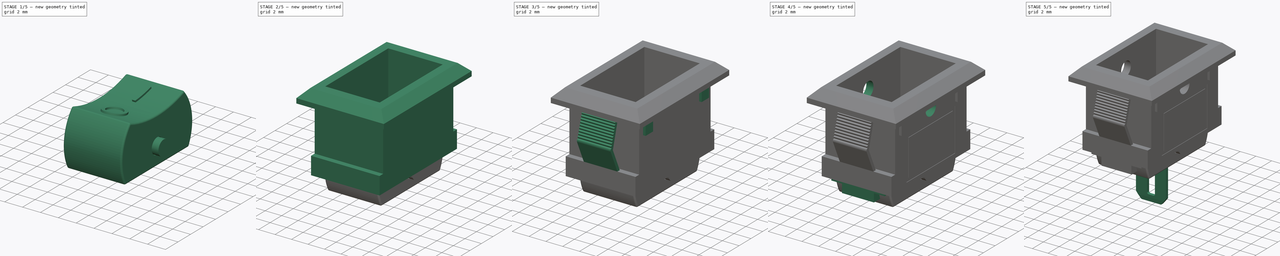
[diagram: build sequence overview — one tinted view per stage of 5, left to right]
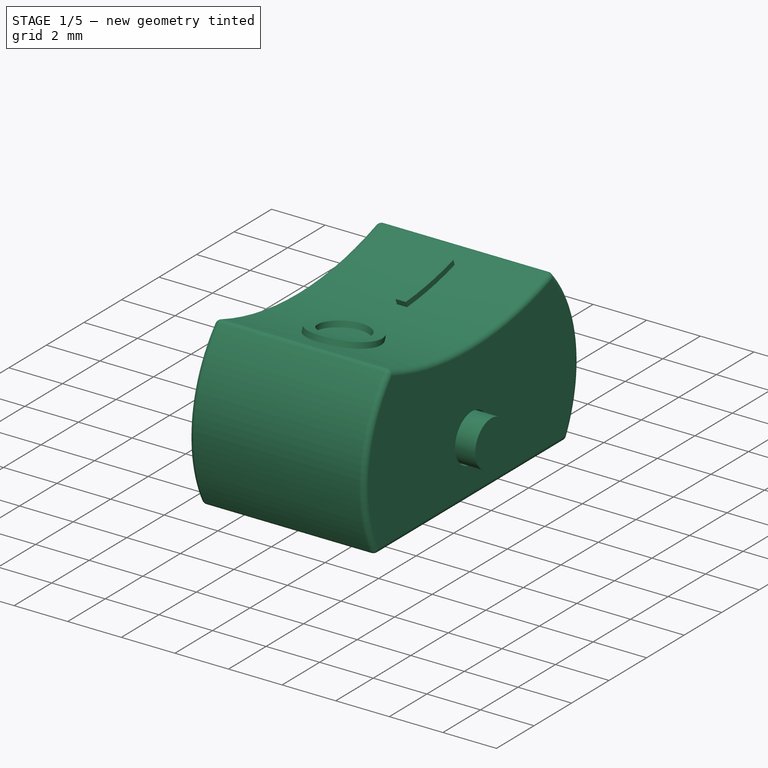
[diagram: stage 1 of 5 — iso view after this stage's code; geometry added in this stage tinted green]
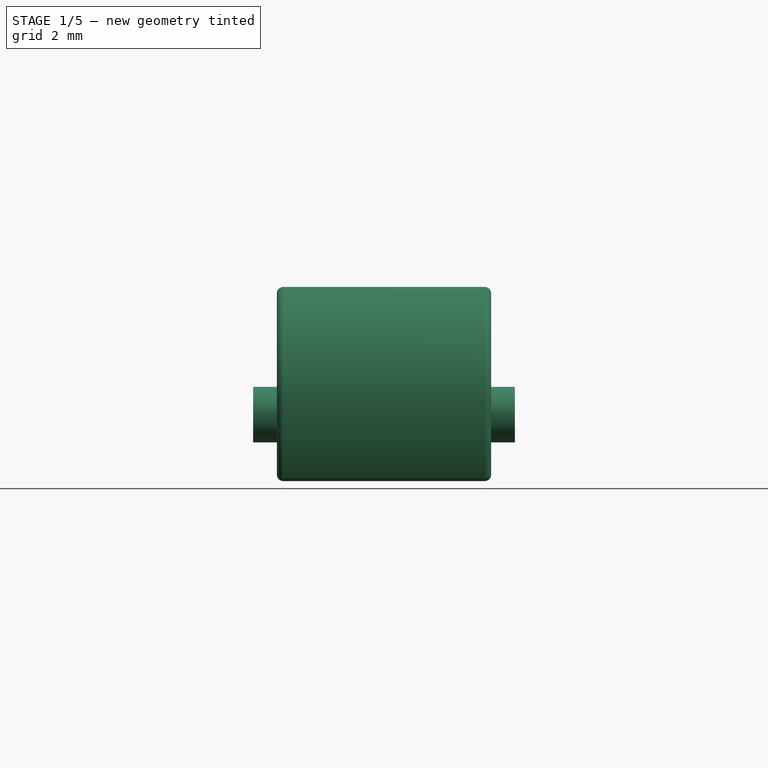
[diagram: stage 1 of 5 — front view after this stage's code; geometry added in this stage tinted green]
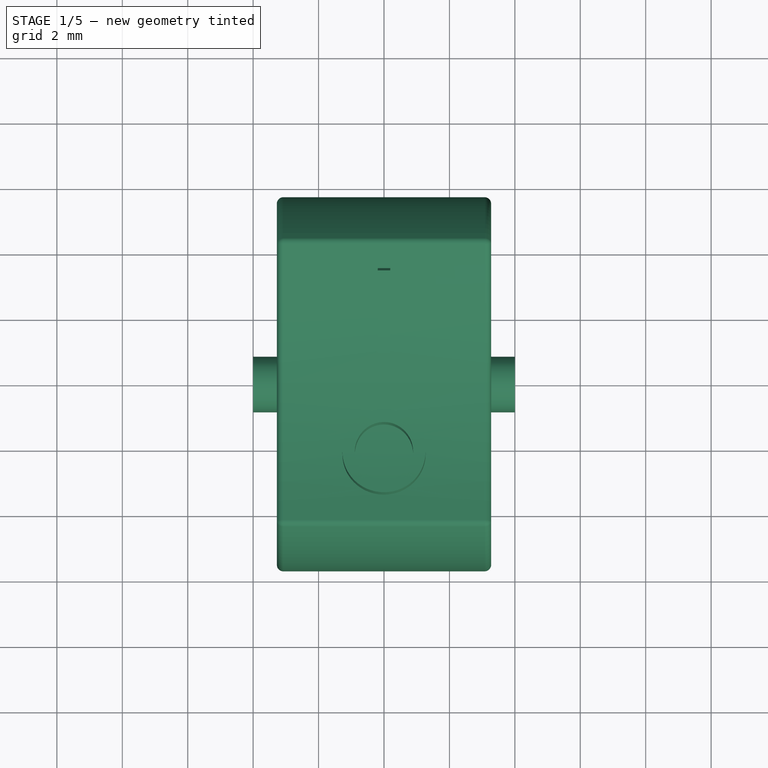
[diagram: stage 1 of 5 — top view after this stage's code; geometry added in this stage tinted green]
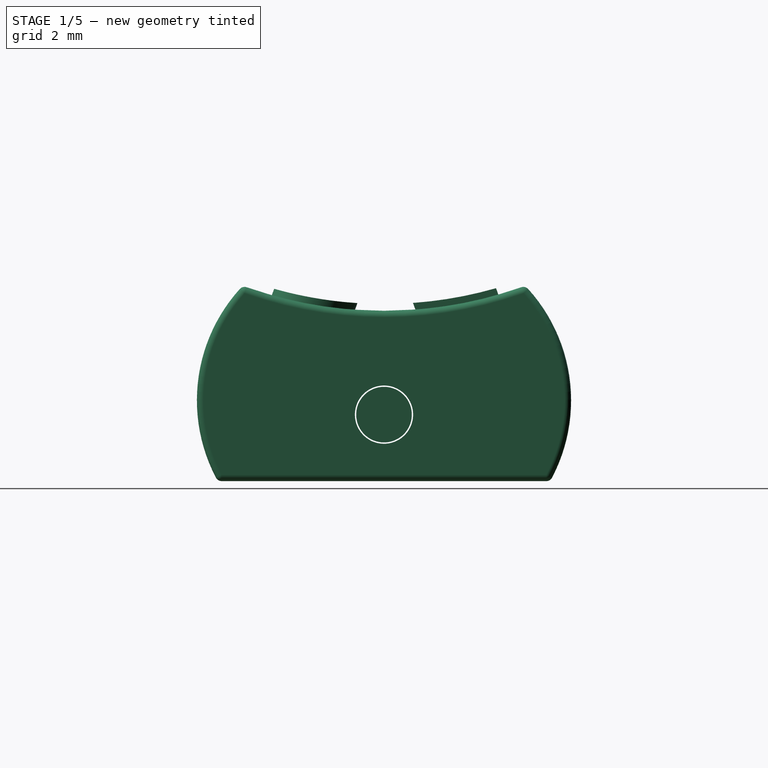
[diagram: stage 1 of 5 — right view after this stage's code; geometry added in this stage tinted green]
FCSTD DOCUMENT  (FreeCAD 0.18.4R)
Label: Mini Rocker Switch
License: CreativeCommons Attribution
LicenseURL: http://creativecommons.org/licenses/by/4.0/
objects: Sketcher::SketchObject×19, PartDesign::Pad×11, PartDesign::Pocket×8, PartDesign::Body×6, PartDesign::Mirrored×4, PartDesign::Fillet×2, PartDesign::FeatureBase×2, PartDesign::Plane×2, PartDesign::Chamfer×1, PartDesign::LinearPattern×1, PartDesign::MultiTransform×1, App::Part×1
note: 76 computed .brp shape members not serialized (recipe doc carries the construction recipe); baked Part::Feature solids carry a one-line shape summary decoded from their .brp

FEATURE [PartDesign::Body] Body003  label="plasticbody"
  Group = -> [Sketch,Pad,Sketch001,Pad001,Chamfer,Sketch002,Pocket,Sketch003,Pocket001,Sketch004,Pad002,Mirrored,Sketch005,Pocket002,MultiTransform,LinearPattern,Mirrored001,Sketch006,Pad003,Mirrored002,Sketch007,Pad004,Sketch008,Pad005,Sketch009,Pocket003,Mirrored003,Sketch013,Pocket006]
  Origin = -> Origin004
  Tip = -> Pocket006
FEATURE [Sketcher::SketchObject] Sketch014
  MapMode = 5
  Placement = pos=(0,0,0) rot=(0.57735,0.57735,0.57735;2.0944rad)
  Support = -> [YZ_Plane002]
  sketch-geometry (1):
    g0: Circle CenterX=0 CenterY=0 CenterZ=0 NormalX=0 NormalY=0 NormalZ=1 AngleXU=0 Radius=0.85
  constraints (2):
    c: Coincident(g0,g-1)
    c: Radius(g0) = 0.85
FEATURE [PartDesign::Pad] Pad007
  Length = 8
  Length2 = 100
  Midplane = true
  Placement = pos=(0,0,0) rot=(0.57735,0.57735,0.57735;2.0944rad)
  Profile = -> Sketch014
  Refine = true
  Type = 0
FEATURE [PartDesign::Body] Body001  label="pin"
  Group = -> [Sketch014,Pad007]
  Origin = -> Origin002
  Placement = pos=(0,0,7) rot=(0,0,1;0rad)
  Tip = -> Pad007
FEATURE [Sketcher::SketchObject] Sketch015
  MapMode = 5
  Placement = pos=(0,0,0) rot=(0.57735,0.57735,0.57735;2.0944rad)
  Support = -> [YZ_Plane003]
  sketch-geometry (7):
    g0: Circle CenterX=0 CenterY=0 CenterZ=0 NormalX=0 NormalY=0 NormalZ=1 AngleXU=0 Radius=0.89
    g1: LineSegment StartX=-5.08 StartY=-2.032 StartZ=0 EndX=5.08 EndY=-2.032 EndZ=0
    g2: ArcOfCircle CenterX=-0.639102 CenterY=0.434743 CenterZ=0 NormalX=0 NormalY=0 NormalZ=1 AngleXU=0 Radius=5.08 StartAngle=2.38066 EndAngle=3.64862
    g3: ArcOfCircle CenterX=0 CenterY=15.783 CenterZ=0 NormalX=0 NormalY=0 NormalZ=1 AngleXU=0 Radius=12.6076 StartAngle=4.36282 EndAngle=5.06196
    g4: ArcOfCircle CenterX=0.639102 CenterY=0.434743 CenterZ=0 NormalX=0 NormalY=0 NormalZ=1 AngleXU=0 Radius=5.08 StartAngle=5.77616 EndAngle=7.04412
    g5: LineSegment [constr] StartX=-4.318 StartY=3.9379 StartZ=0 EndX=4.318 EndY=3.9379 EndZ=0
    g6: LineSegment [constr] StartX=-2.2e-15 StartY=3.9379 StartZ=0 EndX=-2.2e-15 EndY=3.1754 EndZ=0
  constraints (21):
    c: Coincident(g0,g-1)
    c: Coincident(g2,g1)
    c: PointOnObject(g3,g-2)
    c: Coincident(g3,g2)
    c: Coincident(g4,g3)
    c: Coincident(g4,g1)
    c: Coincident(g5,g2)
    c: Horizontal(g5)
    c: Coincident(g3,g5)
    c: PointOnObject(g6,g3)
    c: Vertical(g6)
    c: DistanceY(g6,g6) = 0.7625
    c: Equal(g4,g2)
    c: Symmetric(g1,g1,g-2)
    c: DistanceX(g1,g1) = 10.16
    c: DistanceY(g1,g0) = 2.032
    c: DistanceX(g5,g5) = 8.636
    c: Radius(g4) = 5.08
    c: Radius(g0) = 0.89
    c: Symmetric(g2,g3,g6)
    c: DistanceY(g1,g2) = 5.9699
FEATURE [PartDesign::Pad] Pad008
  Length = 6.55
  Length2 = 100
  Midplane = true
  Placement = pos=(0,0,0) rot=(0.57735,0.57735,0.57735;2.0944rad)
  Profile = -> Sketch015
  Refine = true
  Type = 0
FEATURE [PartDesign::Plane] DatumPlane
  AttachmentOffset = pos=(0,0,0) rot=(1,0,0;0.349066rad)
  Length = 24.5285
  MapMode = 2
  Placement = pos=(0,0,0) rot=(1,0,0;0.349066rad)
  ResizeMode = 0
  Support = -> [XY_Plane003]
  Width = 30.1628
FEATURE [Sketcher::SketchObject] Sketch016
  ExternalGeometry = -> [Pad008]
  MapMode = 5
  Placement = pos=(0,0,0) rot=(1,0,0;0.349066rad)
  Support = -> [DatumPlane]
  sketch-geometry (4):
    g0: LineSegment StartX=-0.19 StartY=4.54 StartZ=0 EndX=0.19 EndY=4.54 EndZ=0
    g1: LineSegment StartX=0.19 StartY=4.54 StartZ=0 EndX=0.19 EndY=2 EndZ=0
    g2: LineSegment StartX=0.19 StartY=2 StartZ=0 EndX=-0.19 EndY=2 EndZ=0
    g3: LineSegment StartX=-0.19 StartY=2 StartZ=0 EndX=-0.19 EndY=4.54 EndZ=0
  constraints (11):
    c: Coincident(g0,g1)
    c: Coincident(g1,g2)
    c: Coincident(g2,g3)
    c: Coincident(g3,g0)
    c: Horizontal(g2)
    c: Vertical(g1)
    c: Vertical(g3)
    c: Symmetric(g0,g0,g-2)
    c: DistanceY(g1,g1) = 2.54
    c: DistanceX(g0,g0) = 0.38
    c: DistanceY(g-1,g1) = 2
FEATURE [PartDesign::Pad] Pad009
  BaseFeature = -> Pad008
  Length = 4
  Length2 = 100
  Placement = pos=(0,0,0) rot=(0.57735,0.57735,0.57735;2.0944rad)
  Profile = -> Sketch016
  Refine = true
  Type = 0
FEATURE [PartDesign::Plane] DatumPlane001
  AttachmentOffset = pos=(0,0,0) rot=(-1,0,0;0.349066rad)
  Length = 24.5285
  MapMode = 5
  Placement = pos=(0,0,0) rot=(-1,0,0;0.349066rad)
  ResizeMode = 0
  Support = -> [XY_Plane003]
  Width = 30.1628
FEATURE [Sketcher::SketchObject] Sketch017
  MapMode = 5
  Placement = pos=(0,0,0) rot=(-1,0,0;0.349066rad)
  Support = -> [DatumPlane001]
  sketch-geometry (2):
    g0: Circle CenterX=0 CenterY=-3.2 CenterZ=0 NormalX=0 NormalY=0 NormalZ=1 AngleXU=0 Radius=1.271
    g1: Circle CenterX=0 CenterY=-3.2 CenterZ=0 NormalX=0 NormalY=0 NormalZ=1 AngleXU=0 Radius=0.89
  constraints (5):
    c: PointOnObject(g0,g-2)
    c: Coincident(g1,g0)
    c: Radius(g1) = 0.89
    c: Radius(g0) = 1.271
    c: DistanceY(g0,g-1) = 3.2
FEATURE [PartDesign::Pad] Pad010
  BaseFeature = -> Pad009
  Length = 4
  Length2 = 100
  Placement = pos=(0,0,0) rot=(0.57735,0.57735,0.57735;2.0944rad)
  Profile = -> Sketch017
  Refine = true
  Type = 0
FEATURE [Sketcher::SketchObject] Sketch018
  ExternalGeometry = -> [Pad010]
  MapMode = 5
  Placement = pos=(0,0,0) rot=(0.57735,0.57735,0.57735;2.0944rad)
  Support = -> [YZ_Plane003]
  sketch-geometry (5):
    g0: ArcOfCircle CenterX=3.1e-15 CenterY=15.783 CenterZ=0 NormalX=0 NormalY=0 NormalZ=1 AngleXU=0 Radius=12.4 StartAngle=4.34533 EndAngle=5.07945
    g1: LineSegment StartX=-4.45 StartY=6.20896 StartZ=0 EndX=4.45 EndY=6.20896 EndZ=0
    g2: LineSegment StartX=4.45 StartY=6.20896 StartZ=0 EndX=4.45 EndY=4.20896 EndZ=0
    g3: LineSegment [constr] StartX=4.45 StartY=4.20896 StartZ=0 EndX=-4.45 EndY=4.20896 EndZ=0
    g4: LineSegment StartX=-4.45 StartY=4.20896 StartZ=0 EndX=-4.45 EndY=6.20896 EndZ=0
  constraints (14):
    c: Coincident(g0,g-3)
    c: Radius(g0) = 12.4
    c: Coincident(g1,g2)
    c: Coincident(g2,g3)
    c: Coincident(g3,g4)
    c: Coincident(g4,g1)
    c: Horizontal(g1)
    c: Horizontal(g3)
    c: Vertical(g2)
    c: Vertical(g4)
    c: Coincident(g2,g0)
    c: Coincident(g0,g3)
    c: DistanceX(g1,g1) = 8.9
    c: DistanceY(g2,g2) = 2
FEATURE [PartDesign::Pocket] Pocket007
  BaseFeature = -> Pad010
  Length = 5
  Length2 = 100
  Midplane = true
  Placement = pos=(0,0,0) rot=(0.57735,0.57735,0.57735;2.0944rad)
  Profile = -> Sketch018
  Refine = true
  Type = 1
FEATURE [PartDesign::Fillet] Fillet001
  Base = -> Pocket007 [Face1,Face3,Face2,Edge11,Edge13]
  BaseFeature = -> Pocket007
  Placement = pos=(0,0,0) rot=(0.57735,0.57735,0.57735;2.0944rad)
  Radius = 0.2
FEATURE [PartDesign::Body] Body002  label="switch"
  Group = -> [Sketch015,Pad008,DatumPlane,Sketch016,Pad009,DatumPlane001,Sketch017,Pad010,Sketch018,Pocket007,Fillet001]
  Origin = -> Origin003
  Placement = pos=(0,0,7) rot=(1,0,0;0.261799rad)
  Tip = -> Fillet001
FEATURE [App::Part] Part
  Group = -> [Body,Body001,Body002,Body003,Body004,Body005]
  Origin = -> Origin001
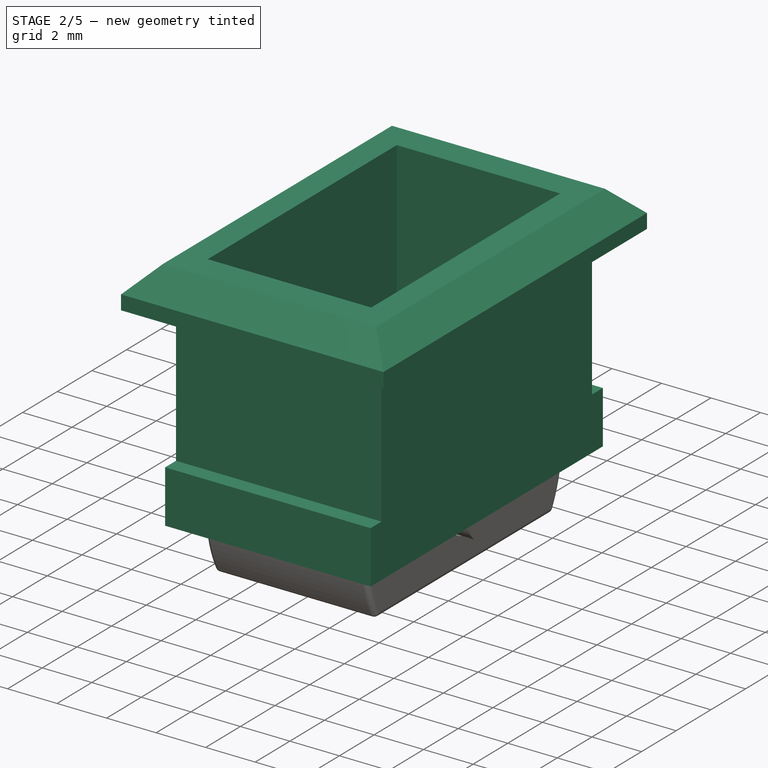
[diagram: stage 2 of 5 — iso view after this stage's code; geometry added in this stage tinted green]
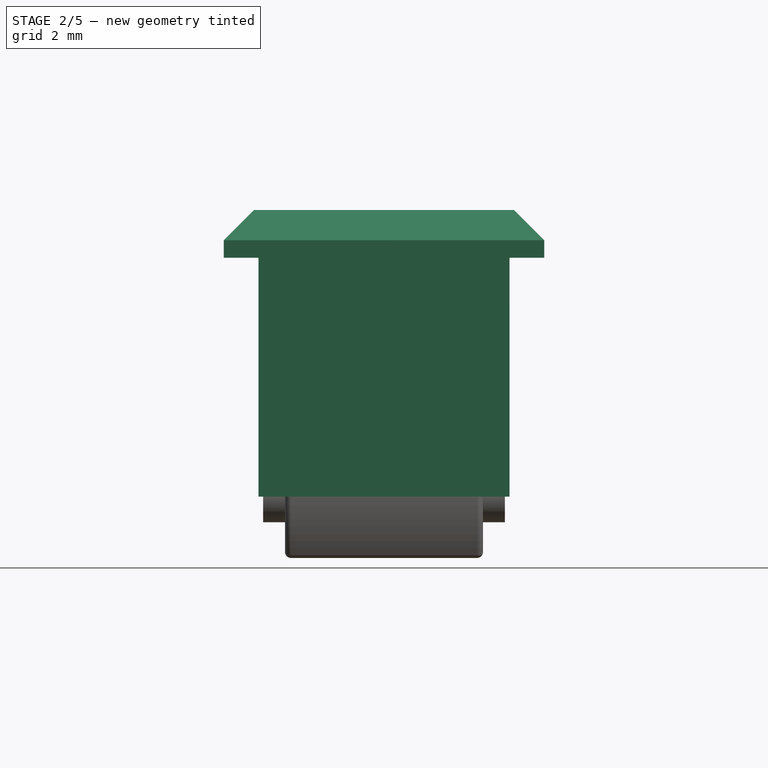
[diagram: stage 2 of 5 — front view after this stage's code; geometry added in this stage tinted green]
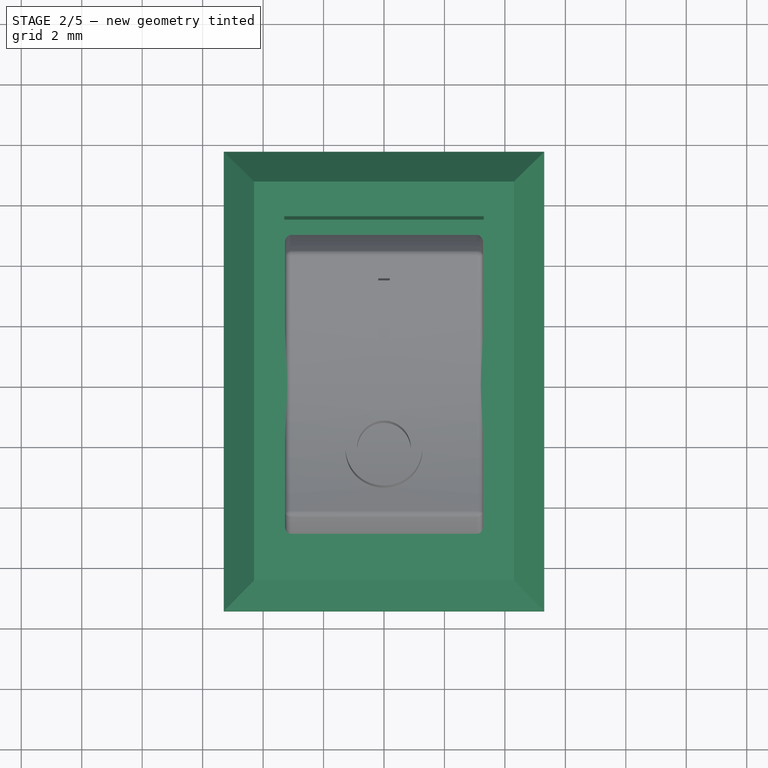
[diagram: stage 2 of 5 — top view after this stage's code; geometry added in this stage tinted green]
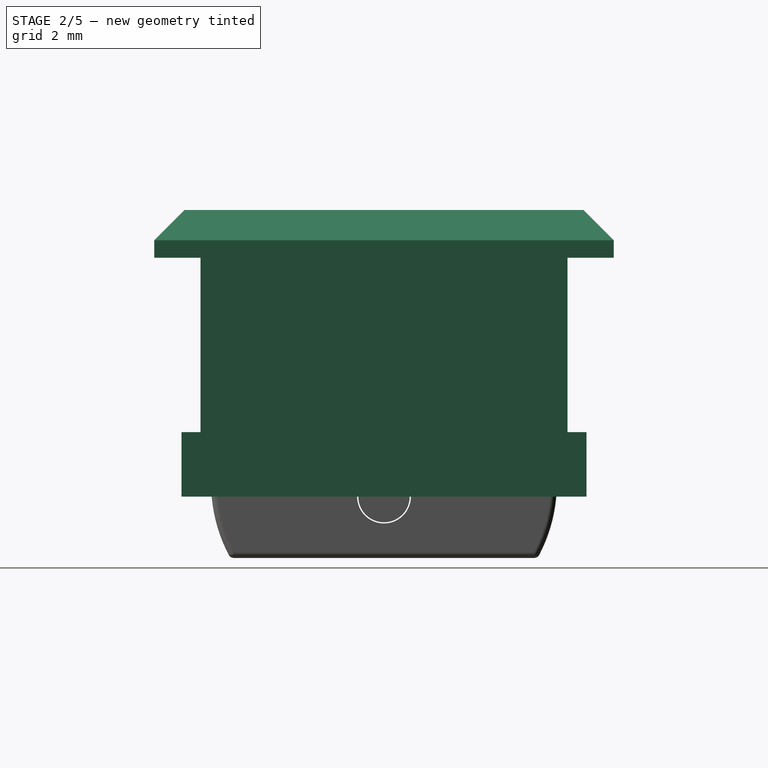
[diagram: stage 2 of 5 — right view after this stage's code; geometry added in this stage tinted green]
FEATURE [Sketcher::SketchObject] Sketch
  MapMode = 5
  Support = -> [XY_Plane004]
  sketch-geometry (4):
    g0: LineSegment StartX=-4.15 StartY=6.7 StartZ=0 EndX=4.15 EndY=6.7 EndZ=0
    g1: LineSegment StartX=4.15 StartY=6.7 StartZ=0 EndX=4.15 EndY=-6.7 EndZ=0
    g2: LineSegment StartX=4.15 StartY=-6.7 StartZ=0 EndX=-4.15 EndY=-6.7 EndZ=0
    g3: LineSegment StartX=-4.15 StartY=-6.7 StartZ=0 EndX=-4.15 EndY=6.7 EndZ=0
  constraints (11):
    c: Coincident(g0,g1)
    c: Coincident(g1,g2)
    c: Coincident(g2,g3)
    c: Coincident(g3,g0)
    c: Horizontal(g0)
    c: Horizontal(g2)
    c: Vertical(g1)
    c: Vertical(g3)
    c: Symmetric(g0,g1,g-1)
    c: DistanceX(g0,g0) = 8.3
    c: DistanceY(g1,g1) = 13.4
FEATURE [PartDesign::Pad] Pad
  Length = 7.9
  Length2 = 100
  Profile = -> Sketch
  Refine = true
  Type = 0
FEATURE [Sketcher::SketchObject] Sketch001
  MapMode = 5
  Placement = pos=(0,0,7.9) rot=(0,0,1;0rad)
  Support = -> [Pad]
  sketch-geometry (4):
    g0: LineSegment StartX=-5.3 StartY=7.6 StartZ=0 EndX=5.3 EndY=7.6 EndZ=0
    g1: LineSegment StartX=5.3 StartY=7.6 StartZ=0 EndX=5.3 EndY=-7.6 EndZ=0
    g2: LineSegment StartX=5.3 StartY=-7.6 StartZ=0 EndX=-5.3 EndY=-7.6 EndZ=0
    g3: LineSegment StartX=-5.3 StartY=-7.6 StartZ=0 EndX=-5.3 EndY=7.6 EndZ=0
  constraints (11):
    c: Coincident(g0,g1)
    c: Coincident(g1,g2)
    c: Coincident(g2,g3)
    c: Coincident(g3,g0)
    c: Horizontal(g0)
    c: Horizontal(g2)
    c: Vertical(g1)
    c: Vertical(g3)
    c: Symmetric(g1,g0,g-1)
    c: DistanceX(g0,g0) = 10.6
    c: DistanceY(g1,g1) = 15.2
FEATURE [PartDesign::Pad] Pad001
  BaseFeature = -> Pad
  Length = 1.58
  Length2 = 100
  Profile = -> Sketch001
  Refine = true
  Type = 0
FEATURE [PartDesign::Chamfer] Chamfer
  Base = -> Pad001 [Face5]
  BaseFeature = -> Pad001
  Size = 1
FEATURE [Sketcher::SketchObject] Sketch002
  MapMode = 5
  Placement = pos=(0,0,9.48) rot=(0,0,1;0rad)
  Support = -> [Chamfer]
  sketch-geometry (4):
    g0: LineSegment StartX=-3.3 StartY=5.45 StartZ=0 EndX=3.3 EndY=5.45 EndZ=0
    g1: LineSegment StartX=3.3 StartY=5.45 StartZ=0 EndX=3.3 EndY=-5.45 EndZ=0
    g2: LineSegment StartX=3.3 StartY=-5.45 StartZ=0 EndX=-3.3 EndY=-5.45 EndZ=0
    g3: LineSegment StartX=-3.3 StartY=-5.45 StartZ=0 EndX=-3.3 EndY=5.45 EndZ=0
  constraints (11):
    c: Coincident(g0,g1)
    c: Coincident(g1,g2)
    c: Coincident(g2,g3)
    c: Coincident(g3,g0)
    c: Horizontal(g0)
    c: Horizontal(g2)
    c: Vertical(g1)
    c: Vertical(g3)
    c: DistanceY(g1,g1) = 10.9
    c: DistanceX(g0,g0) = 6.6
    c: Symmetric(g0,g1,g-1)
FEATURE [PartDesign::Pocket] Pocket
  BaseFeature = -> Chamfer
  Length = 6.35
  Length2 = 100
  Profile = -> Sketch002
  Refine = true
  Type = 0
FEATURE [Sketcher::SketchObject] Sketch003
  ExternalGeometry = -> [Pocket]
  MapMode = 5
  Placement = pos=(0,0,0) rot=(0.57735,0.57735,0.57735;2.0944rad)
  Support = -> [YZ_Plane004]
  sketch-geometry (8):
    g0: LineSegment StartX=-6.7 StartY=7.9 StartZ=0 EndX=-6.07 EndY=7.9 EndZ=0
    g1: LineSegment StartX=-6.07 StartY=7.9 StartZ=0 EndX=-6.07 EndY=2.13 EndZ=0
    g2: LineSegment StartX=-6.07 StartY=2.13 StartZ=0 EndX=-6.7 EndY=2.13 EndZ=0
    g3: LineSegment StartX=-6.7 StartY=2.13 StartZ=0 EndX=-6.7 EndY=7.9 EndZ=0
    g4: LineSegment StartX=6.7 StartY=7.9 StartZ=0 EndX=6.07 EndY=7.9 EndZ=0
    g5: LineSegment StartX=6.07 StartY=7.9 StartZ=0 EndX=6.07 EndY=2.13 EndZ=0
    g6: LineSegment StartX=6.07 StartY=2.13 StartZ=0 EndX=6.7 EndY=2.13 EndZ=0
    g7: LineSegment StartX=6.7 StartY=2.13 StartZ=0 EndX=6.7 EndY=7.9 EndZ=0
  constraints (22):
    c: Coincident(g0,g1)
    c: Coincident(g1,g2)
    c: Coincident(g2,g3)
    c: Coincident(g3,g0)
    c: Horizontal(g0)
    c: Horizontal(g2)
    c: Vertical(g1)
    c: Vertical(g3)
    c: Coincident(g0,g-3)
    c: Coincident(g4,g5)
    c: Coincident(g5,g6)
    c: Coincident(g6,g7)
    c: Coincident(g7,g4)
    c: Horizontal(g4)
    c: Horizontal(g6)
    c: Vertical(g5)
    c: Vertical(g7)
    c: Coincident(g4,g-4)
    c: Equal(g4,g0)
    c: DistanceY(g-3,g2) = 2.13
    c: DistanceX(g1,g5) = 12.14
    c: Equal(g5,g1)
FEATURE [PartDesign::Pocket] Pocket001
  BaseFeature = -> Pocket
  Length = 5
  Length2 = 100
  Midplane = true
  Profile = -> Sketch003
  Refine = true
  Reversed = true
  Type = 1
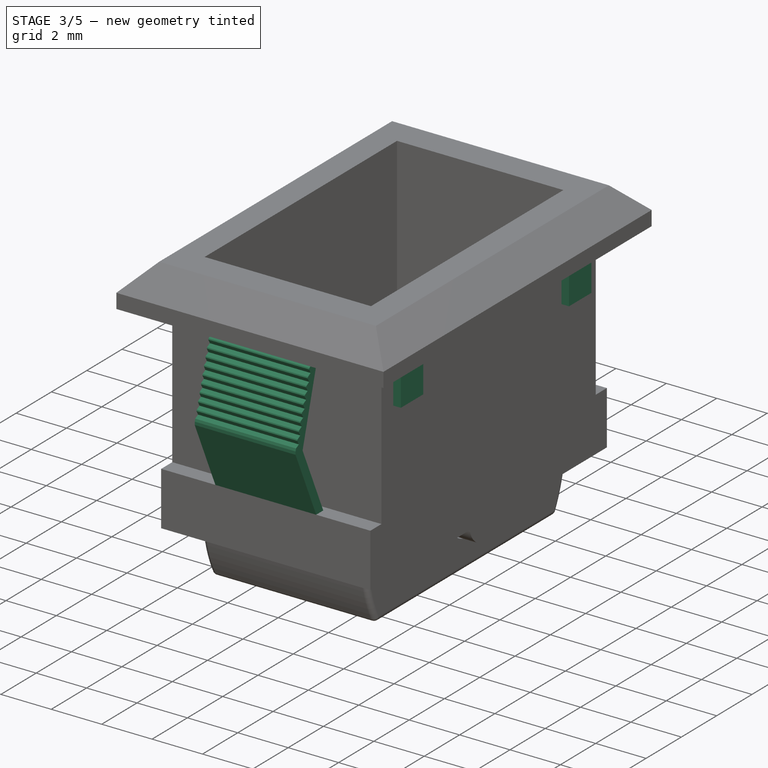
[diagram: stage 3 of 5 — iso view after this stage's code; geometry added in this stage tinted green]
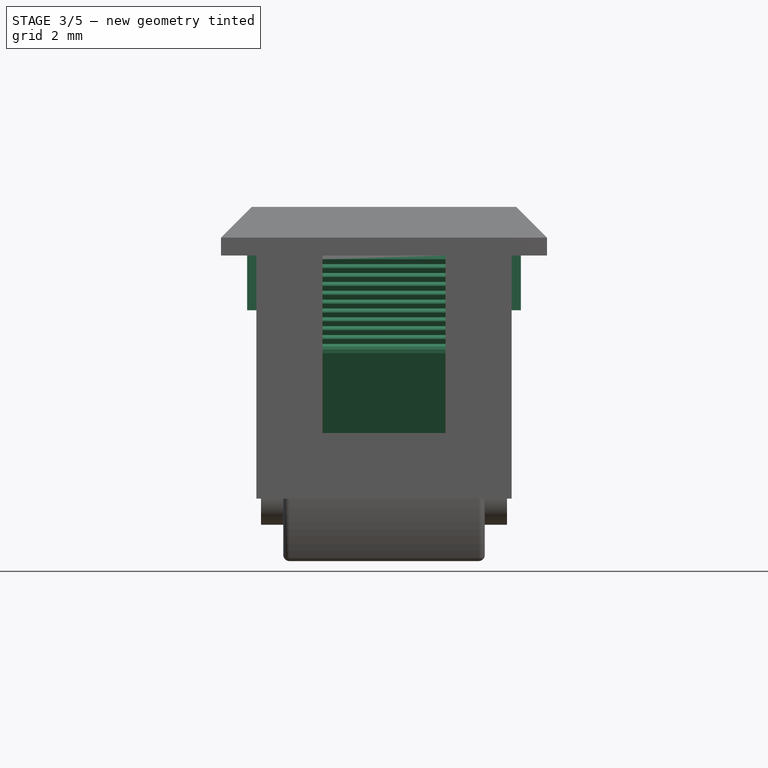
[diagram: stage 3 of 5 — front view after this stage's code; geometry added in this stage tinted green]
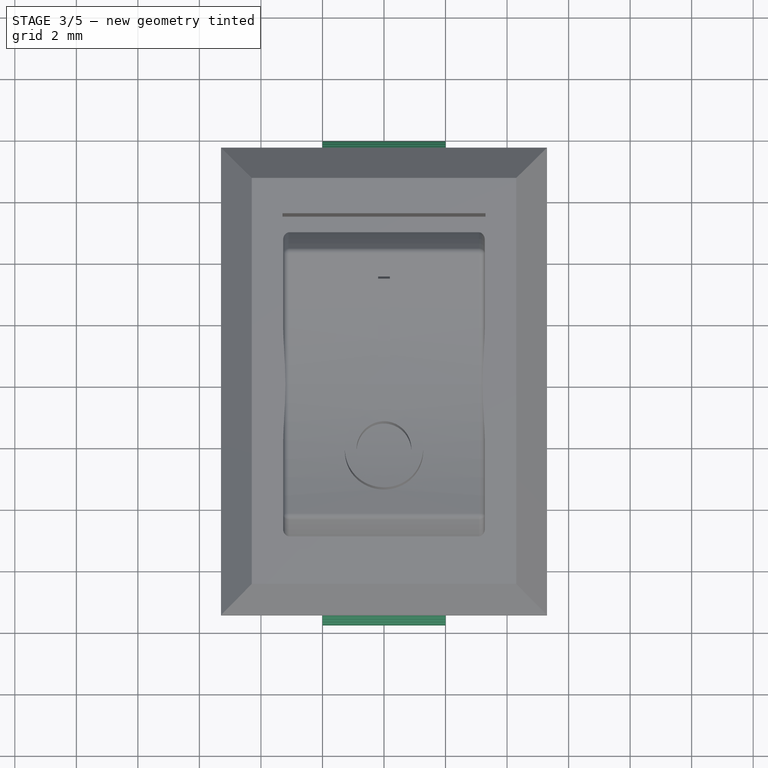
[diagram: stage 3 of 5 — top view after this stage's code; geometry added in this stage tinted green]
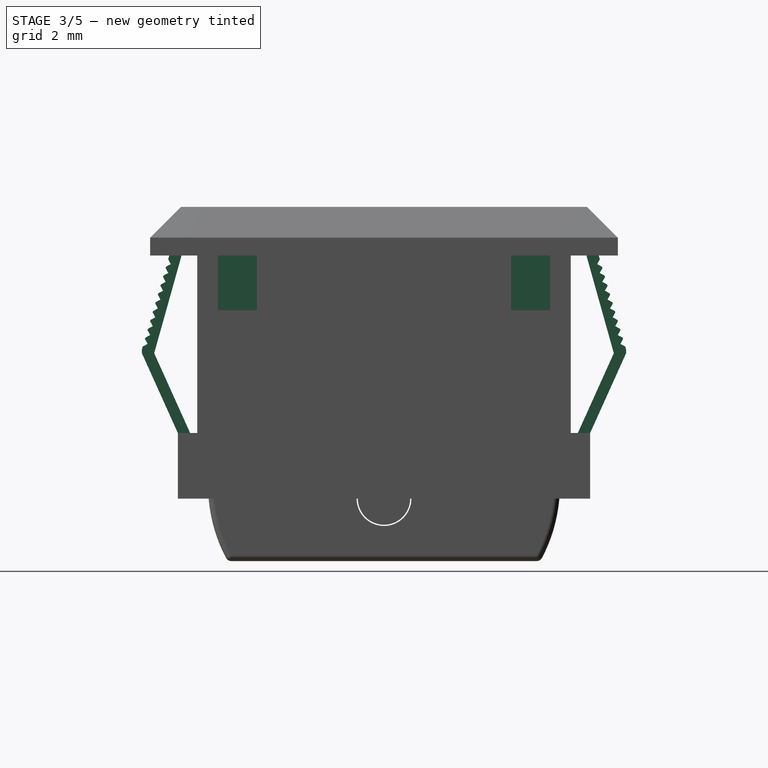
[diagram: stage 3 of 5 — right view after this stage's code; geometry added in this stage tinted green]
FEATURE [Sketcher::SketchObject] Sketch004
  ExternalGeometry = -> [Pocket001]
  MapMode = 5
  Placement = pos=(0,0,0) rot=(0.57735,0.57735,0.57735;2.0944rad)
  Support = -> [YZ_Plane004]
  sketch-geometry (8):
    g0: LineSegment StartX=-6.98 StartY=7.9 StartZ=0 EndX=-6.58 EndY=7.9 EndZ=0
    g1: LineSegment StartX=-6.58 StartY=7.9 StartZ=0 EndX=-7.47 EndY=4.725 EndZ=0
    g2: LineSegment StartX=-7.47 StartY=4.725 StartZ=0 EndX=-6.3 EndY=2.13 EndZ=0
    g3: LineSegment StartX=-6.3 StartY=2.13 StartZ=0 EndX=-6.7 EndY=2.13 EndZ=0
    g4: LineSegment StartX=-6.7 StartY=2.13 StartZ=0 EndX=-7.87 EndY=4.725 EndZ=0
    g5: LineSegment StartX=-7.87 StartY=4.725 StartZ=0 EndX=-7.87 EndY=4.845 EndZ=0
    g6: LineSegment StartX=-7.87 StartY=4.845 StartZ=0 EndX=-6.98 EndY=7.9 EndZ=0
    g7: LineSegment [constr] StartX=-7.47 StartY=4.725 StartZ=0 EndX=-7.87 EndY=4.725 EndZ=0
  constraints (22):
    c: Coincident(g0,g1)
    c: Coincident(g1,g2)
    c: Coincident(g2,g3)
    c: Coincident(g3,g4)
    c: Coincident(g4,g5)
    c: Vertical(g5)
    c: Coincident(g5,g6)
    c: Coincident(g6,g0)
    c: Horizontal(g0)
    c: Horizontal(g0,g-3)
    c: Horizontal(g2,g-3)
    c: DistanceY(g1,g-3) = 3.175
    c: DistanceX(g0,g0) = 0.4
    c: Equal(g3,g0)
    c: Horizontal(g1,g4)
    c: Coincident(g7,g1)
    c: Coincident(g7,g4)
    c: Equal(g7,g0)
    c: DistanceX(g5,g-1) = 7.87
    c: DistanceY(g5,g5) = 0.12
    c: Coincident(g3,g-4)
    c: DistanceX(g0,g-1) = 6.98
FEATURE [PartDesign::Pad] Pad002
  BaseFeature = -> Pocket001
  Length = 4
  Length2 = 100
  Midplane = true
  Profile = -> Sketch004
  Refine = true
  Type = 0
FEATURE [PartDesign::Mirrored] Mirrored
  BaseFeature = -> Pad002
  MirrorPlane = -> Sketch004 [V_Axis]
  Originals = -> [Pad002]
  Refine = true
FEATURE [Sketcher::SketchObject] Sketch005
  ExternalGeometry = -> [Mirrored]
  MapMode = 5
  Placement = pos=(0,0,0) rot=(0.57735,0.57735,0.57735;2.0944rad)
  Support = -> [YZ_Plane004]
  sketch-geometry (4):
    g0: LineSegment StartX=-7.01552 StartY=7.77807 StartZ=0 EndX=-6.92911 EndY=7.62062 EndZ=0
    g1: LineSegment StartX=-6.92911 StartY=7.62062 StartZ=0 EndX=-7.08657 EndY=7.53421 EndZ=0
    g2: LineSegment StartX=-7.08657 StartY=7.53421 StartZ=0 EndX=-7.01552 EndY=7.77807 EndZ=0
    g3: LineSegment [constr] StartX=-6.92911 StartY=7.62062 StartZ=0 EndX=-7.05104 EndY=7.65614 EndZ=0
  constraints (11):
    c: PointOnObject(g0,g-3)
    c: Coincident(g0,g1)
    c: PointOnObject(g1,g-3)
    c: Coincident(g1,g2)
    c: Coincident(g2,g0)
    c: Coincident(g3,g0)
    c: Symmetric(g1,g0,g3)
    c: Perpendicular(g2,g3)
    c: Distance(g3) = 0.127
    c: Distance(g0,g-3) = 0.127
    c: Distance(g2) = 0.254
FEATURE [PartDesign::Pocket] Pocket002
  BaseFeature = -> Mirrored
  Length = 5
  Length2 = 100
  Midplane = true
  Profile = -> Sketch005
  Refine = true
  Type = 0
FEATURE [PartDesign::LinearPattern] LinearPattern
  Direction = -> Pocket002 [Edge82]
  Length = 2.7
  Occurrences = 10
  Refine = true
  Reversed = true
FEATURE [PartDesign::Mirrored] Mirrored001
  MirrorPlane = -> Sketch005 [V_Axis]
  Refine = true
FEATURE [PartDesign::MultiTransform] MultiTransform
  BaseFeature = -> Pocket002
  Originals = -> [Pocket002]
  Refine = true
  Transformations = -> [LinearPattern,Mirrored001]
FEATURE [Sketcher::SketchObject] Sketch006
  ExternalGeometry = -> [MultiTransform]
  MapMode = 5
  Placement = pos=(4.15,0,0) rot=(0.57735,0.57735,0.57735;2.0944rad)
  Support = -> [MultiTransform]
  sketch-geometry (8):
    g0: LineSegment StartX=-5.4 StartY=7.9 StartZ=0 EndX=-4.13 EndY=7.9 EndZ=0
    g1: LineSegment StartX=-4.13 StartY=7.9 StartZ=0 EndX=-4.13 EndY=6.122 EndZ=0
    g2: LineSegment StartX=-4.13 StartY=6.122 StartZ=0 EndX=-5.4 EndY=6.122 EndZ=0
    g3: LineSegment StartX=-5.4 StartY=6.122 StartZ=0 EndX=-5.4 EndY=7.9 EndZ=0
    g4: LineSegment StartX=4.13 StartY=7.9 StartZ=0 EndX=5.4 EndY=7.9 EndZ=0
    g5: LineSegment StartX=5.4 StartY=7.9 StartZ=0 EndX=5.4 EndY=6.122 EndZ=0
    g6: LineSegment StartX=5.4 StartY=6.122 StartZ=0 EndX=4.13 EndY=6.122 EndZ=0
    g7: LineSegment StartX=4.13 StartY=6.122 StartZ=0 EndX=4.13 EndY=7.9 EndZ=0
  constraints (23):
    c: Coincident(g0,g1)
    c: Coincident(g1,g2)
    c: Coincident(g2,g3)
    c: Coincident(g3,g0)
    c: Horizontal(g0)
    c: Horizontal(g2)
    c: Vertical(g1)
    c: Vertical(g3)
    c: Coincident(g4,g5)
    c: Coincident(g5,g6)
    c: Coincident(g6,g7)
    c: Coincident(g7,g4)
    c: Horizontal(g4)
    c: Horizontal(g6)
    c: Vertical(g5)
    c: Vertical(g7)
    c: Symmetric(g0,g4,g-2)
    c: PointOnObject(g4,g-3)
    c: DistanceX(g4,g4) = 1.27
    c: DistanceY(g5,g5) = 1.778
    c: Equal(g1,g7)
    c: Equal(g4,g0)
    c: DistanceX(g0,g4) = 8.26
FEATURE [PartDesign::Pad] Pad003
  BaseFeature = -> MultiTransform
  Length = 0.3
  Length2 = 100
  Profile = -> Sketch006
  Refine = true
  Type = 0
FEATURE [PartDesign::Mirrored] Mirrored002
  BaseFeature = -> Pad003
  MirrorPlane = -> YZ_Plane004
  Originals = -> [Pad003]
  Refine = true
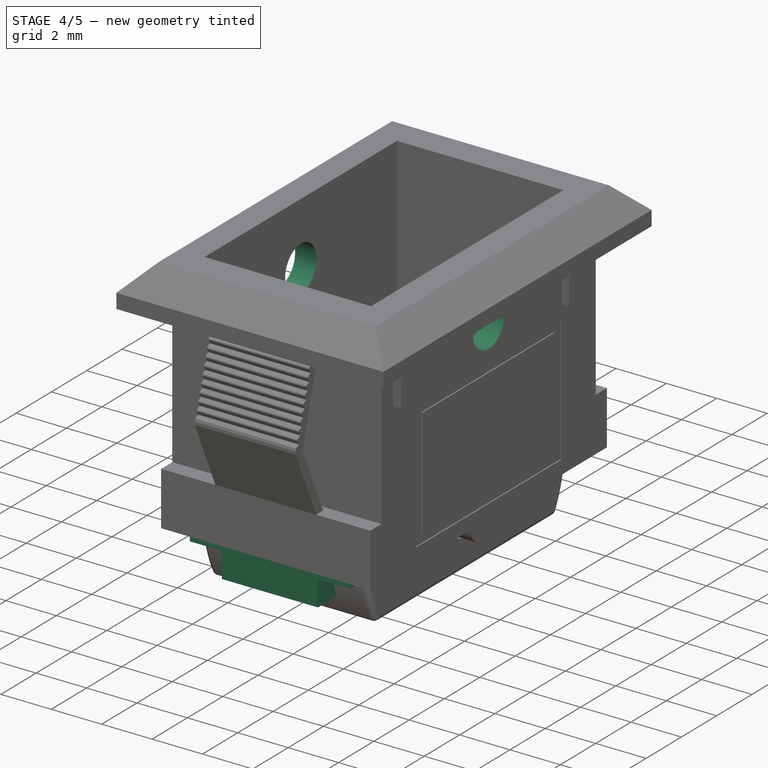
[diagram: stage 4 of 5 — iso view after this stage's code; geometry added in this stage tinted green]
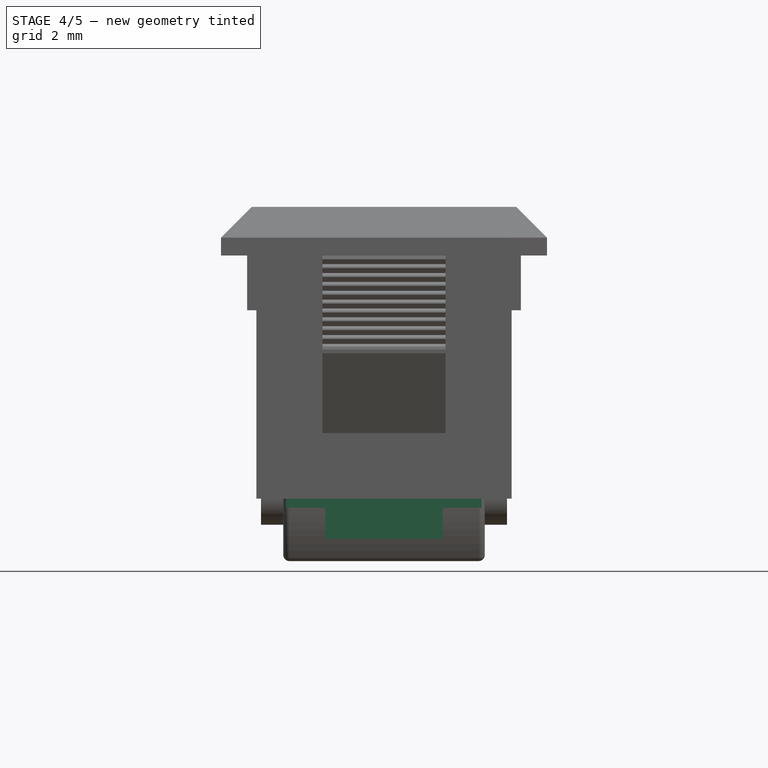
[diagram: stage 4 of 5 — front view after this stage's code; geometry added in this stage tinted green]
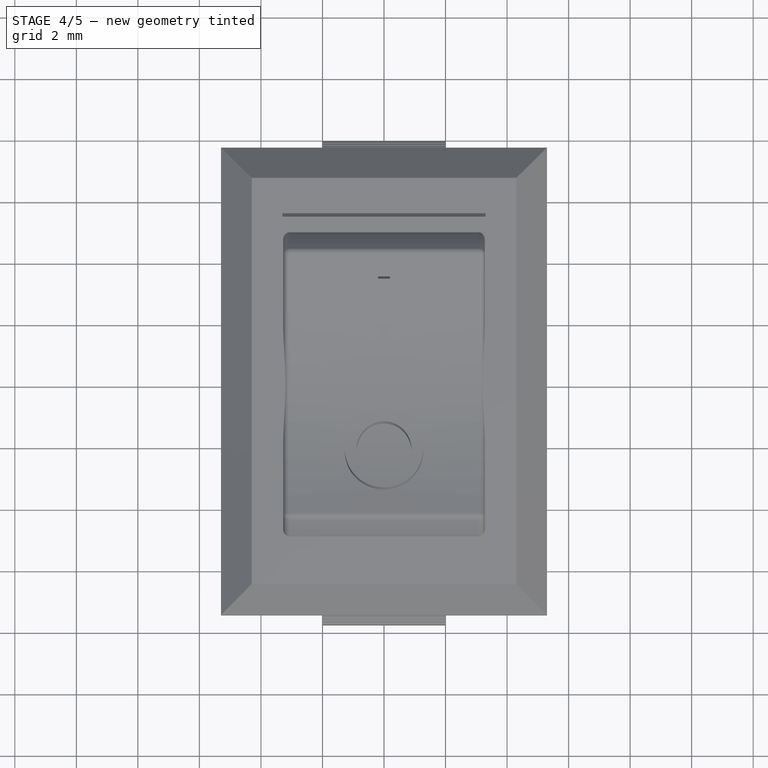
[diagram: stage 4 of 5 — top view after this stage's code; geometry added in this stage tinted green]
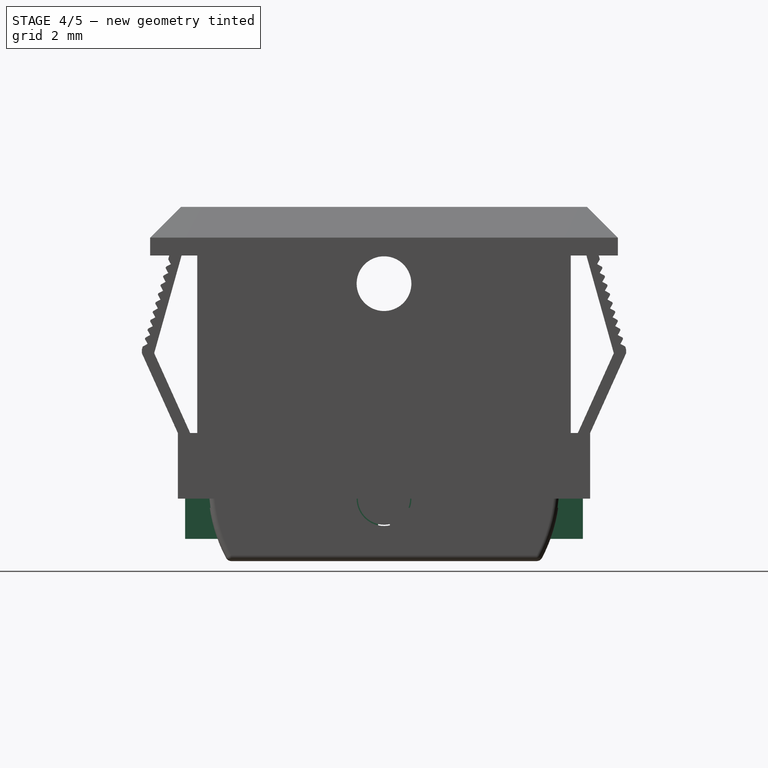
[diagram: stage 4 of 5 — right view after this stage's code; geometry added in this stage tinted green]
FEATURE [Sketcher::SketchObject] Sketch007
  MapMode = 5
  Placement = pos=(0,0,0) rot=(1,0,0;3.14159rad)
  Support = -> [Mirrored002]
  sketch-geometry (12):
    g0: LineSegment StartX=-3.175 StartY=1.395 StartZ=0 EndX=3.175 EndY=1.395 EndZ=0
    g1: LineSegment StartX=3.175 StartY=1.395 StartZ=0 EndX=3.175 EndY=-1.395 EndZ=0
    g2: LineSegment StartX=3.175 StartY=-1.395 StartZ=0 EndX=-3.175 EndY=-1.395 EndZ=0
    g3: LineSegment StartX=-3.175 StartY=-1.395 StartZ=0 EndX=-3.175 EndY=1.395 EndZ=0
    g4: LineSegment StartX=-3.175 StartY=6.465 StartZ=0 EndX=3.175 EndY=6.465 EndZ=0
    g5: LineSegment StartX=3.175 StartY=6.465 StartZ=0 EndX=3.175 EndY=3.675 EndZ=0
    g6: LineSegment StartX=3.175 StartY=3.675 StartZ=0 EndX=-3.175 EndY=3.675 EndZ=0
    g7: LineSegment StartX=-3.175 StartY=3.675 StartZ=0 EndX=-3.175 EndY=6.465 EndZ=0
    g8: LineSegment StartX=-3.175 StartY=-3.675 StartZ=0 EndX=3.175 EndY=-3.675 EndZ=0
    g9: LineSegment StartX=3.175 StartY=-3.675 StartZ=0 EndX=3.175 EndY=-6.465 EndZ=0
    g10: LineSegment StartX=3.175 StartY=-6.465 StartZ=0 EndX=-3.175 EndY=-6.465 EndZ=0
    g11: LineSegment StartX=-3.175 StartY=-6.465 StartZ=0 EndX=-3.175 EndY=-3.675 EndZ=0
  constraints (34):
    c: Coincident(g0,g1)
    c: Coincident(g1,g2)
    c: Coincident(g2,g3)
    c: Coincident(g3,g0)
    c: Horizontal(g0)
    c: Horizontal(g2)
    c: Vertical(g1)
    c: Vertical(g3)
    c: Coincident(g4,g5)
    c: Coincident(g5,g6)
    c: Coincident(g6,g7)
    c: Coincident(g7,g4)
    c: Horizontal(g4)
    c: Horizontal(g6)
    c: Vertical(g5)
    c: Vertical(g7)
    c: Coincident(g8,g9)
    c: Coincident(g9,g10)
    c: Coincident(g10,g11)
    c: Coincident(g11,g8)
    c: Horizontal(g8)
    c: Horizontal(g10)
    c: Vertical(g9)
    c: Vertical(g11)
    c: Equal(g9,g1)
    c: Equal(g1,g5)
    c: Symmetric(g5,g8,g-1)
    c: Equal(g6,g0)
    c: Equal(g0,g8)
    c: Symmetric(g0,g2,g-1)
    c: Vertical(g0,g5)
    c: DistanceY(g0,g5) = 2.28
    c: DistanceY(g5,g5) = 2.79
    c: DistanceX(g4,g4) = 6.35
FEATURE [PartDesign::Pad] Pad004
  BaseFeature = -> Mirrored002
  Length = 0.3
  Length2 = 100
  Profile = -> Sketch007
  Refine = true
  Type = 0
FEATURE [Sketcher::SketchObject] Sketch008
  ExternalGeometry = -> [Pad004]
  MapMode = 5
  Placement = pos=(0,0,-0.3) rot=(1,0,0;3.14159rad)
  Support = -> [Pad004]
  sketch-geometry (24):
    g0: LineSegment StartX=-1.905 StartY=6.465 StartZ=0 EndX=1.905 EndY=6.465 EndZ=0
    g1: LineSegment StartX=1.905 StartY=6.465 StartZ=0 EndX=1.905 EndY=5.26 EndZ=0
    g2: LineSegment StartX=1.905 StartY=5.26 StartZ=0 EndX=-1.905 EndY=5.26 EndZ=0
    g3: LineSegment StartX=-1.905 StartY=5.26 StartZ=0 EndX=-1.905 EndY=6.465 EndZ=0
    g4: LineSegment StartX=-1.905 StartY=4.88 StartZ=0 EndX=1.905 EndY=4.88 EndZ=0
    g5: LineSegment StartX=1.905 StartY=4.88 StartZ=0 EndX=1.905 EndY=3.675 EndZ=0
    g6: LineSegment StartX=1.905 StartY=3.675 StartZ=0 EndX=-1.905 EndY=3.675 EndZ=0
    g7: LineSegment StartX=-1.905 StartY=3.675 StartZ=0 EndX=-1.905 EndY=4.88 EndZ=0
    g8: LineSegment StartX=-1.905 StartY=1.395 StartZ=0 EndX=1.905 EndY=1.395 EndZ=0
    g9: LineSegment StartX=1.905 StartY=1.395 StartZ=0 EndX=1.905 EndY=0.19 EndZ=0
    g10: LineSegment StartX=1.905 StartY=0.19 StartZ=0 EndX=-1.905 EndY=0.19 EndZ=0
    g11: LineSegment StartX=-1.905 StartY=0.19 StartZ=0 EndX=-1.905 EndY=1.395 EndZ=0
    g12: LineSegment StartX=-1.905 StartY=-0.19 StartZ=0 EndX=1.905 EndY=-0.19 EndZ=0
    g13: LineSegment StartX=1.905 StartY=-0.19 StartZ=0 EndX=1.905 EndY=-1.395 EndZ=0
    g14: LineSegment StartX=1.905 StartY=-1.395 StartZ=0 EndX=-1.905 EndY=-1.395 EndZ=0
    g15: LineSegment StartX=-1.905 StartY=-1.395 StartZ=0 EndX=-1.905 EndY=-0.19 EndZ=0
    g16: LineSegment StartX=-1.905 StartY=-3.675 StartZ=0 EndX=1.905 EndY=-3.675 EndZ=0
    g17: LineSegment StartX=1.905 StartY=-3.675 StartZ=0 EndX=1.905 EndY=-4.88 EndZ=0
    g18: LineSegment StartX=1.905 StartY=-4.88 StartZ=0 EndX=-1.905 EndY=-4.88 EndZ=0
    g19: LineSegment StartX=-1.905 StartY=-4.88 StartZ=0 EndX=-1.905 EndY=-3.675 EndZ=0
    g20: LineSegment StartX=-1.905 StartY=-5.26 StartZ=0 EndX=1.905 EndY=-5.26 EndZ=0
    g21: LineSegment StartX=1.905 StartY=-5.26 StartZ=0 EndX=1.905 EndY=-6.465 EndZ=0
    g22: LineSegment StartX=1.905 StartY=-6.465 StartZ=0 EndX=-1.905 EndY=-6.465 EndZ=0
    g23: LineSegment StartX=-1.905 StartY=-6.465 StartZ=0 EndX=-1.905 EndY=-5.26 EndZ=0
  constraints (71):
    c: Coincident(g0,g1)
    c: Coincident(g1,g2)
    c: Coincident(g2,g3)
    c: Coincident(g3,g0)
    c: Horizontal(g2)
    c: Vertical(g1)
    c: Vertical(g3)
    c: Coincident(g4,g5)
    c: Coincident(g5,g6)
    c: Coincident(g6,g7)
    c: Coincident(g7,g4)
    c: Horizontal(g4)
    c: Horizontal(g6)
    c: Vertical(g5)
    c: Vertical(g7)
    c: Coincident(g8,g9)
    c: Coincident(g9,g10)
    c: Coincident(g10,g11)
    c: Coincident(g11,g8)
    c: Horizontal(g8)
    c: Horizontal(g10)
    c: Vertical(g9)
    c: Vertical(g11)
    c: Coincident(g12,g13)
    c: Coincident(g13,g14)
    c: Coincident(g14,g15)
    c: Coincident(g15,g12)
    c: Horizontal(g12)
    c: Horizontal(g14)
    c: Vertical(g13)
    c: Vertical(g15)
    c: Coincident(g16,g17)
    c: Coincident(g17,g18)
    c: Coincident(g18,g19)
    c: Coincident(g19,g16)
    c: Horizontal(g16)
    c: Horizontal(g18)
    c: Vertical(g17)
    c: Vertical(g19)
    c: Coincident(g20,g21)
    c: Coincident(g21,g22)
    c: Coincident(g22,g23)
    c: Coincident(g23,g20)
    c: Horizontal(g20)
    c: Horizontal(g22)
    c: Vertical(g21)
    c: Vertical(g23)
    c: PointOnObject(g0,g-8)
    c: Symmetric(g0,g0,g-2)
    c: Vertical(g4,g2)
    c: Equal(g4,g2)
    c: PointOnObject(g5,g-7)
    c: PointOnObject(g8,g-5)
    c: PointOnObject(g13,g-4)
    c: PointOnObject(g16,g-3)
    c: PointOnObject(g21,g-6)
    c: Equal(g21,g17)
    c: Equal(g17,g13)
    c: Equal(g13,g9)
    c: Equal(g9,g5)
    c: Equal(g5,g1)
    c: Vertical(g20,g17)
    c: Vertical(g17,g13)
    c: Vertical(g13,g9)
    c: Vertical(g9,g5)
    c: Equal(g16,g20)
    c: Equal(g20,g14)
    c: Equal(g14,g8)
    c: Equal(g8,g6)
    c: DistanceX(g8,g8) = 3.81
    c: DistanceY(g12,g9) = 0.38
FEATURE [PartDesign::Pad] Pad005
  BaseFeature = -> Pad004
  Length = 1.01
  Length2 = 100
  Profile = -> Sketch008
  Refine = true
  Type = 0
FEATURE [Sketcher::SketchObject] Sketch009
  ExternalGeometry = -> [Pad005]
  MapMode = 5
  Placement = pos=(4.15,0,0) rot=(0.57735,0.57735,0.57735;2.0944rad)
  Support = -> [Pad005]
  sketch-geometry (12):
    g0: LineSegment StartX=-4.13 StartY=5.622 StartZ=0 EndX=4.13 EndY=5.622 EndZ=0
    g1: LineSegment StartX=4.13 StartY=5.622 StartZ=0 EndX=4.13 EndY=0.542 EndZ=0
    g2: LineSegment StartX=4.13 StartY=0.542 StartZ=0 EndX=-4.13 EndY=0.542 EndZ=0
    g3: LineSegment StartX=-4.13 StartY=0.542 StartZ=0 EndX=-4.13 EndY=5.622 EndZ=0
    g4: LineSegment StartX=-3.75 StartY=5.242 StartZ=0 EndX=3.75 EndY=5.242 EndZ=0
    g5: LineSegment StartX=3.75 StartY=5.242 StartZ=0 EndX=3.75 EndY=0.922 EndZ=0
    g6: LineSegment StartX=3.75 StartY=0.922 StartZ=0 EndX=-3.75 EndY=0.922 EndZ=0
    g7: LineSegment StartX=-3.75 StartY=0.922 StartZ=0 EndX=-3.75 EndY=5.242 EndZ=0
    g8: LineSegment [constr] StartX=-4.13 StartY=0.922 StartZ=0 EndX=-3.75 EndY=0.922 EndZ=0
    g9: LineSegment [constr] StartX=-3.75 StartY=0.922 StartZ=0 EndX=-3.75 EndY=0.542 EndZ=0
    g10: LineSegment [constr] StartX=3.75 StartY=5.242 StartZ=0 EndX=3.75 EndY=5.622 EndZ=0
    g11: LineSegment [constr] StartX=3.75 StartY=5.242 StartZ=0 EndX=4.13 EndY=5.242 EndZ=0
  constraints (35):
    c: Coincident(g0,g1)
    c: Coincident(g1,g2)
    c: Coincident(g2,g3)
    c: Coincident(g3,g0)
    c: Horizontal(g2)
    c: Vertical(g1)
    c: Vertical(g3)
    c: Symmetric(g0,g0,g-2)
    c: Vertical(g-3,g0)
    c: DistanceY(g3,g3) = 5.08
    c: Coincident(g4,g5)
    c: Coincident(g5,g6)
    c: Coincident(g6,g7)
    c: Coincident(g7,g4)
    c: Horizontal(g4)
    c: Horizontal(g6)
    c: Vertical(g5)
    c: Vertical(g7)
    c: PointOnObject(g8,g3)
    c: Coincident(g8,g6)
    c: Horizontal(g8)
    c: Coincident(g9,g6)
    c: PointOnObject(g9,g2)
    c: Vertical(g9)
    c: Coincident(g10,g4)
    c: PointOnObject(g10,g0)
    c: Vertical(g10)
    c: Coincident(g11,g4)
    c: PointOnObject(g11,g1)
    c: Horizontal(g11)
    c: Equal(g11,g10)
    c: Equal(g10,g8)
    c: Equal(g8,g9)
    c: DistanceX(g8,g8) = 0.38
    c: DistanceY(g0,g-4) = 0.5
FEATURE [PartDesign::Pocket] Pocket003
  BaseFeature = -> Pad005
  Length = 0.05
  Length2 = 100
  Profile = -> Sketch009
  Refine = true
  Type = 0
FEATURE [PartDesign::Mirrored] Mirrored003
  BaseFeature = -> Pocket003
  MirrorPlane = -> YZ_Plane004
  Originals = -> [Pocket003]
  Refine = true
FEATURE [PartDesign::Body] Body005
  BaseFeature = -> Body
  Group = -> [Clone001]
  Origin = -> Origin006
  Tip = -> Clone001
FEATURE [Sketcher::SketchObject] Sketch013
  ExternalGeometry = -> [Mirrored003]
  MapMode = 5
  Placement = pos=(0,0,0) rot=(0.57735,0.57735,0.57735;2.0944rad)
  Support = -> [YZ_Plane004]
  sketch-geometry (1):
    g0: Circle CenterX=0 CenterY=6.9856 CenterZ=0 NormalX=0 NormalY=0 NormalZ=1 AngleXU=0 Radius=0.889
  constraints (3):
    c: PointOnObject(g0,g-2)
    c: Radius(g0) = 0.889
    c: DistanceY(g0,g-3) = 0.9144
FEATURE [PartDesign::Pocket] Pocket006
  BaseFeature = -> Mirrored003
  Length = 5
  Length2 = 100
  Midplane = true
  Profile = -> Sketch013
  Refine = true
  Type = 1
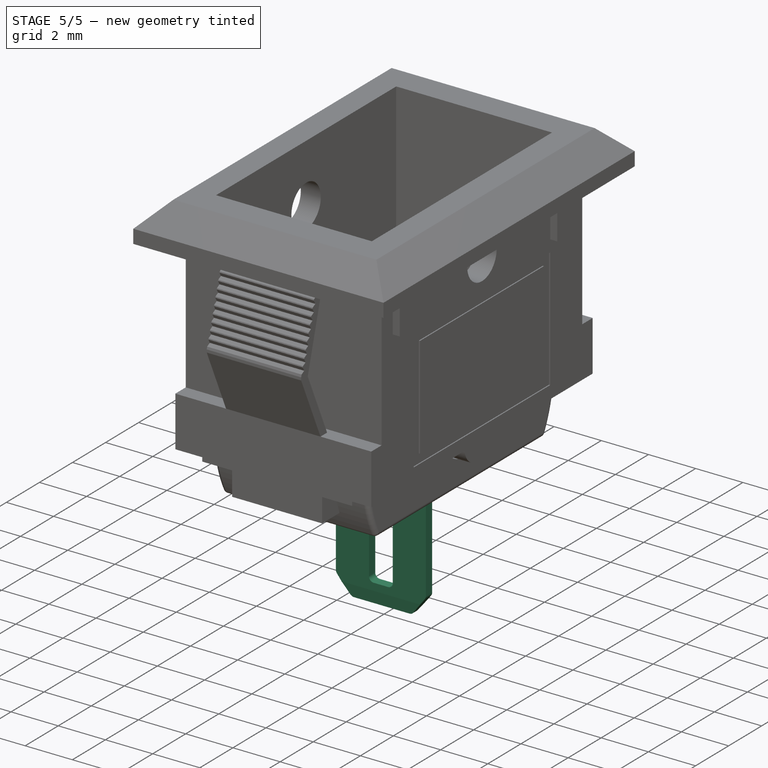
[diagram: stage 5 of 5 — iso view after this stage's code; geometry added in this stage tinted green]
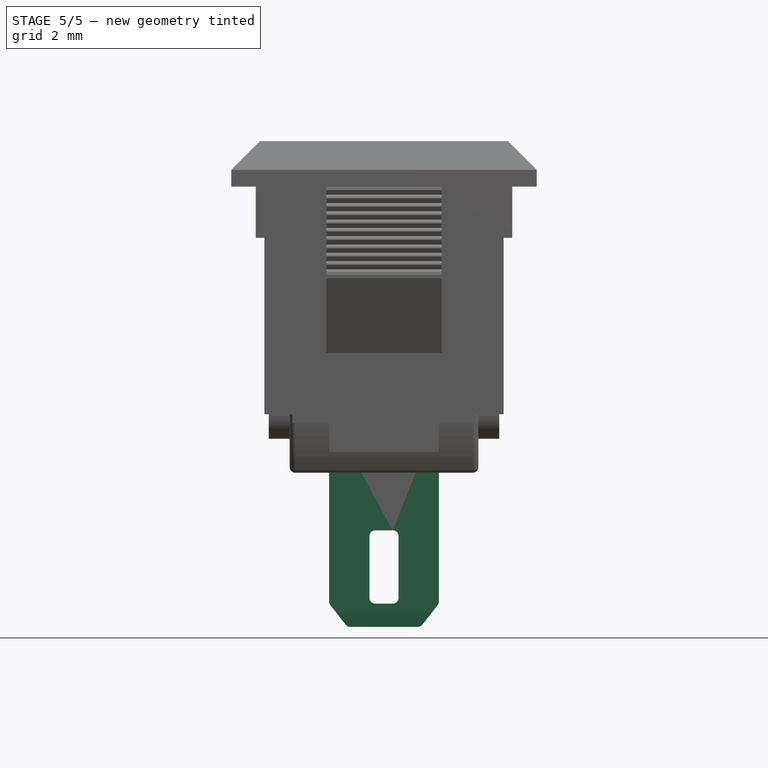
[diagram: stage 5 of 5 — front view after this stage's code; geometry added in this stage tinted green]
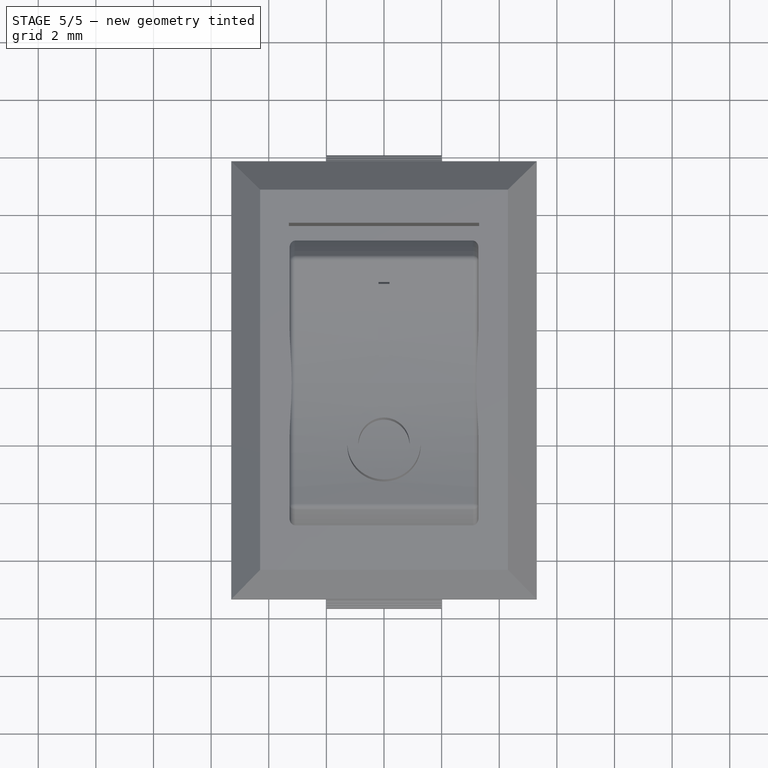
[diagram: stage 5 of 5 — top view after this stage's code; geometry added in this stage tinted green]
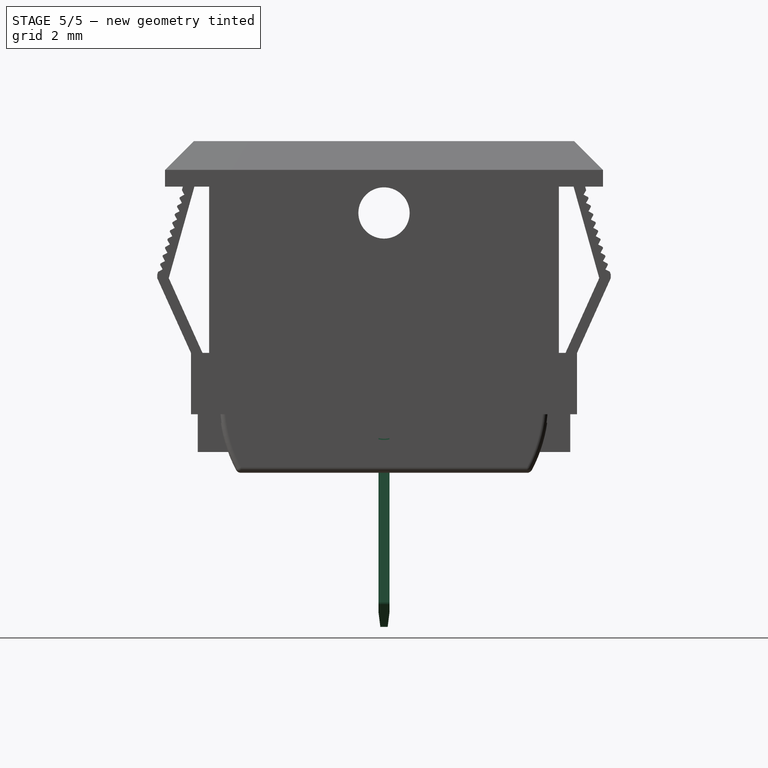
[diagram: stage 5 of 5 — right view after this stage's code; geometry added in this stage tinted green]
FEATURE [Sketcher::SketchObject] Sketch010
  MapMode = 5
  Placement = pos=(0,0,0) rot=(1,0,0;1.5708rad)
  Support = -> [XZ_Plane]
  sketch-geometry (4):
    g0: LineSegment StartX=-1.905 StartY=0 StartZ=0 EndX=1.905 EndY=0 EndZ=0
    g1: LineSegment StartX=1.905 StartY=0 StartZ=0 EndX=1.905 EndY=-7.38 EndZ=0
    g2: LineSegment StartX=1.905 StartY=-7.38 StartZ=0 EndX=-1.905 EndY=-7.38 EndZ=0
    g3: LineSegment StartX=-1.905 StartY=-7.38 StartZ=0 EndX=-1.905 EndY=0 EndZ=0
  constraints (11):
    c: Coincident(g0,g1)
    c: Coincident(g1,g2)
    c: Coincident(g2,g3)
    c: Coincident(g3,g0)
    c: Horizontal(g0)
    c: Horizontal(g2)
    c: Vertical(g1)
    c: Vertical(g3)
    c: Symmetric(g0,g0,g-1)
    c: DistanceX(g0,g0) = 3.81
    c: DistanceY(g3,g3) = 7.38
FEATURE [PartDesign::Pad] Pad006
  Length = 0.38
  Length2 = 100
  Midplane = true
  Placement = pos=(0,0,0) rot=(1,0,0;1.5708rad)
  Profile = -> Sketch010
  Refine = true
  Type = 0
FEATURE [Sketcher::SketchObject] Sketch011
  ExternalGeometry = -> [Pad006]
  MapMode = 5
  Placement = pos=(0,0,0) rot=(0.57735,0.57735,0.57735;2.0944rad)
  Support = -> [YZ_Plane]
  sketch-geometry (6):
    g0: LineSegment StartX=-0.19 StartY=-6.88 StartZ=0 EndX=-0.127 EndY=-7.38 EndZ=0
    g1: LineSegment StartX=-0.127 StartY=-7.38 StartZ=0 EndX=-0.19 EndY=-7.38 EndZ=0
    g2: LineSegment StartX=-0.19 StartY=-7.38 StartZ=0 EndX=-0.19 EndY=-6.88 EndZ=0
    g3: LineSegment StartX=0.19 StartY=-7.38 StartZ=0 EndX=0.19 EndY=-6.88 EndZ=0
    g4: LineSegment StartX=0.19 StartY=-6.88 StartZ=0 EndX=0.127 EndY=-7.38 EndZ=0
    g5: LineSegment StartX=0.127 StartY=-7.38 StartZ=0 EndX=0.19 EndY=-7.38 EndZ=0
  constraints (16):
    c: PointOnObject(g0,g-3)
    c: PointOnObject(g0,g-4)
    c: Coincident(g0,g1)
    c: Coincident(g1,g-4)
    c: Coincident(g1,g2)
    c: Coincident(g2,g0)
    c: Coincident(g-5,g3)
    c: PointOnObject(g3,g-5)
    c: Coincident(g3,g4)
    c: PointOnObject(g4,g-4)
    c: Coincident(g4,g5)
    c: Coincident(g5,g3)
    c: Equal(g1,g5)
    c: DistanceX(g0,g4) = 0.254
    c: DistanceY(g2,g2) = 0.5
    c: Equal(g2,g3)
FEATURE [PartDesign::Pocket] Pocket004
  BaseFeature = -> Pad006
  Length = 5
  Length2 = 100
  Midplane = true
  Placement = pos=(0,0,0) rot=(1,0,0;1.5708rad)
  Profile = -> Sketch011
  Refine = true
  Type = 1
FEATURE [Sketcher::SketchObject] Sketch012
  ExternalGeometry = -> [Pocket004]
  MapMode = 5
  Placement = pos=(0,0,0) rot=(1,0,0;1.5708rad)
  Support = -> [XZ_Plane]
  sketch-geometry (10):
    g0: LineSegment StartX=-0.505 StartY=-4.03 StartZ=0 EndX=0.505 EndY=-4.03 EndZ=0
    g1: LineSegment StartX=0.505 StartY=-4.03 StartZ=0 EndX=0.505 EndY=-6.57 EndZ=0
    g2: LineSegment StartX=0.505 StartY=-6.57 StartZ=0 EndX=-0.505 EndY=-6.57 EndZ=0
    g3: LineSegment StartX=-0.505 StartY=-6.57 StartZ=0 EndX=-0.505 EndY=-4.03 EndZ=0
    g4: LineSegment StartX=-1.905 StartY=-6.57 StartZ=0 EndX=-1.27 EndY=-7.38 EndZ=0
    g5: LineSegment StartX=-1.27 StartY=-7.38 StartZ=0 EndX=-1.905 EndY=-7.38 EndZ=0
    g6: LineSegment StartX=-1.905 StartY=-7.38 StartZ=0 EndX=-1.905 EndY=-6.57 EndZ=0
    g7: LineSegment StartX=1.905 StartY=-6.57 StartZ=0 EndX=1.27 EndY=-7.38 EndZ=0
    g8: LineSegment StartX=1.27 StartY=-7.38 StartZ=0 EndX=1.905 EndY=-7.38 EndZ=0
    g9: LineSegment StartX=1.905 StartY=-7.38 StartZ=0 EndX=1.905 EndY=-6.57 EndZ=0
  constraints (26):
    c: Coincident(g0,g1)
    c: Coincident(g1,g2)
    c: Coincident(g2,g3)
    c: Coincident(g3,g0)
    c: Horizontal(g0)
    c: Vertical(g1)
    c: Vertical(g3)
    c: Coincident(g4,g5)
    c: Coincident(g5,g-3)
    c: Horizontal(g5)
    c: Coincident(g5,g6)
    c: Coincident(g6,g4)
    c: Vertical(g6)
    c: Coincident(g7,g8)
    c: Coincident(g8,g-4)
    c: Coincident(g8,g9)
    c: Coincident(g9,g7)
    c: Vertical(g9)
    c: Symmetric(g7,g4,g-2)
    c: DistanceX(g4,g7) = 2.54
    c: Equal(g9,g6)
    c: DistanceY(g6,g6) = 0.81
    c: Symmetric(g1,g2,g-2)
    c: DistanceY(g1,g1) = 2.54
    c: DistanceX(g2,g2) = 1.01
    c: Horizontal(g7,g1)
FEATURE [PartDesign::Pocket] Pocket005
  BaseFeature = -> Pocket004
  Length = 5
  Length2 = 100
  Midplane = true
  Placement = pos=(0,0,0) rot=(1,0,0;1.5708rad)
  Profile = -> Sketch012
  Refine = true
  Type = 1
FEATURE [PartDesign::Fillet] Fillet
  Base = -> Pocket005 [Edge35,Edge33,Edge32,Edge34,Edge7,Edge9,Edge29,Edge26]
  BaseFeature = -> Pocket005
  Placement = pos=(0,0,0) rot=(1,0,0;1.5708rad)
  Radius = 0.2
FEATURE [PartDesign::Body] Body  label="Conector"
  Group = -> [Sketch010,Pad006,Sketch011,Pocket004,Sketch012,Pocket005,Fillet]
  Origin = -> Origin
  Tip = -> Fillet
FEATURE [PartDesign::FeatureBase] Clone
  BaseFeature = -> Body
FEATURE [PartDesign::Body] Body004
  BaseFeature = -> Body
  Group = -> [Clone]
  Origin = -> Origin005
  Placement = pos=(0,-5.07676,0) rot=(0,0,1;0rad)
  Tip = -> Clone
FEATURE [PartDesign::FeatureBase] Clone001
  BaseFeature = -> Body
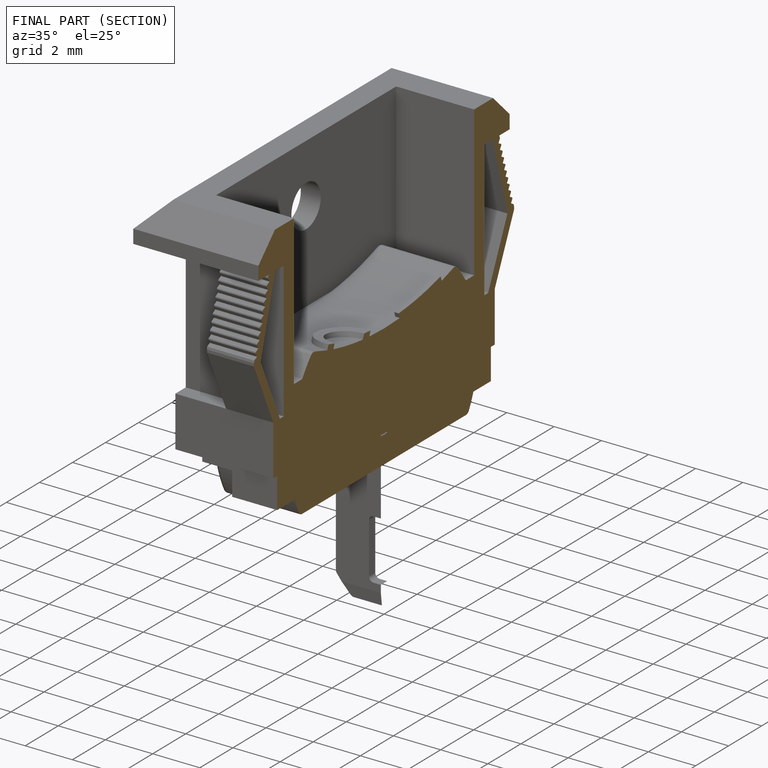
[diagram: finished part — half-section view (interior)]
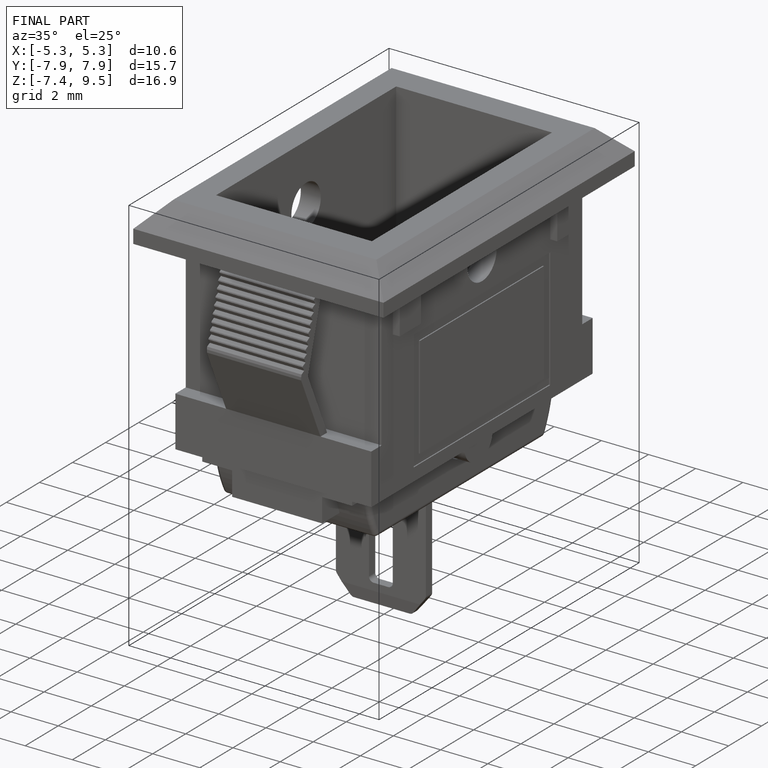
[diagram: finished part — iso view with bounding-box wireframe]
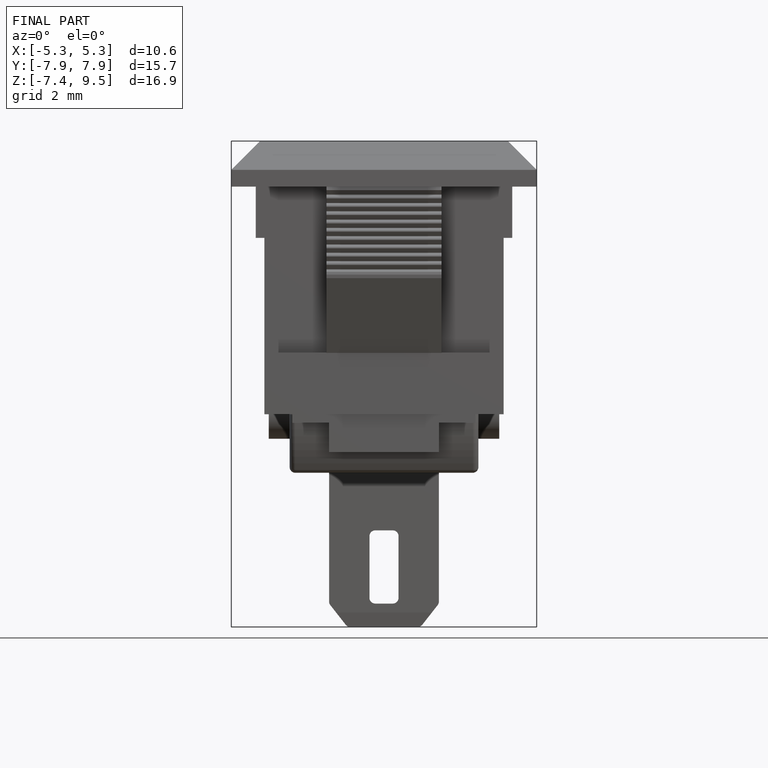
[diagram: finished part — front view with bounding-box wireframe]
